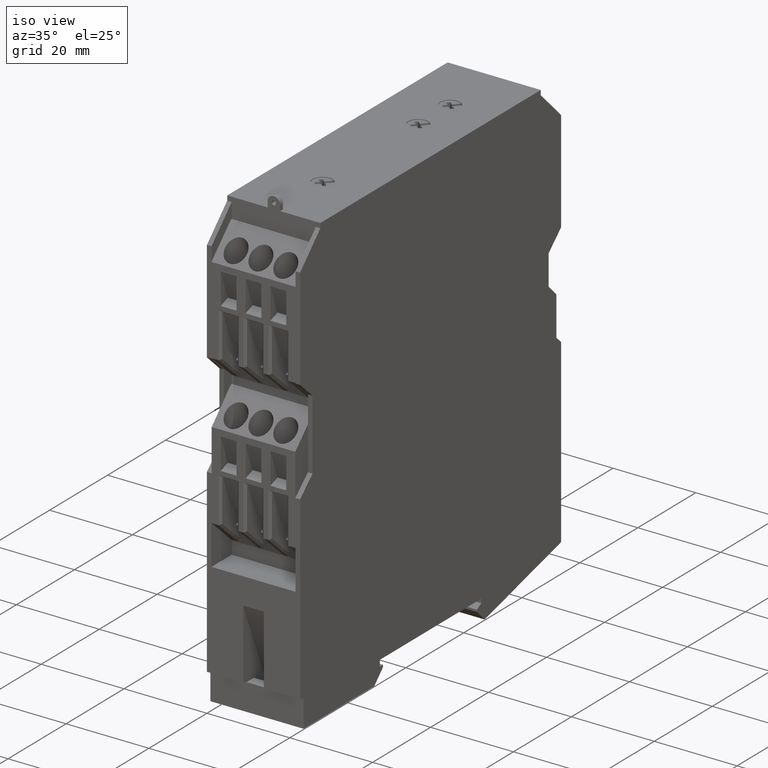
[diagram: clean part render]
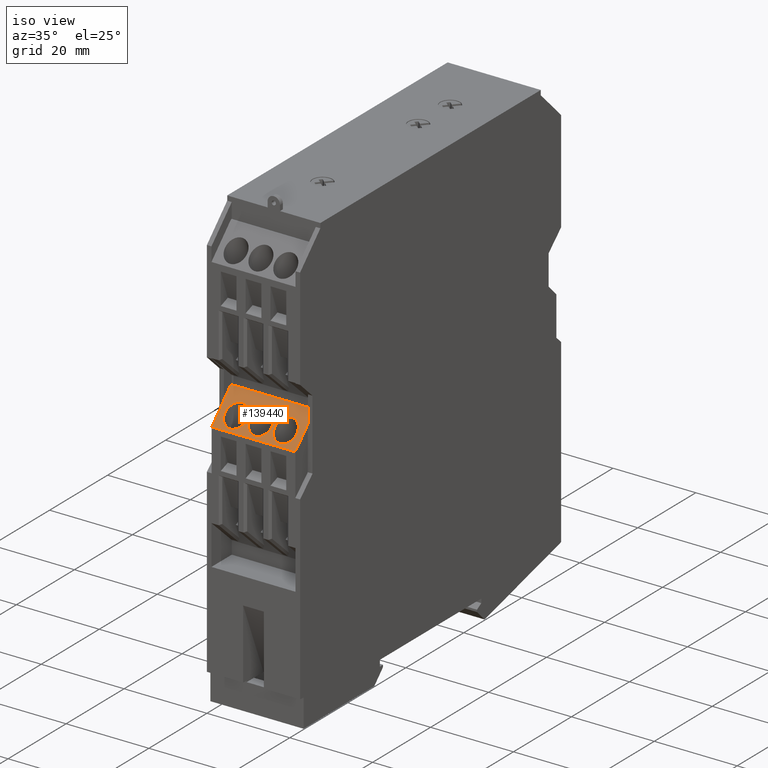
[diagram: same view with one face highlighted and labeled with its STEP entity id]
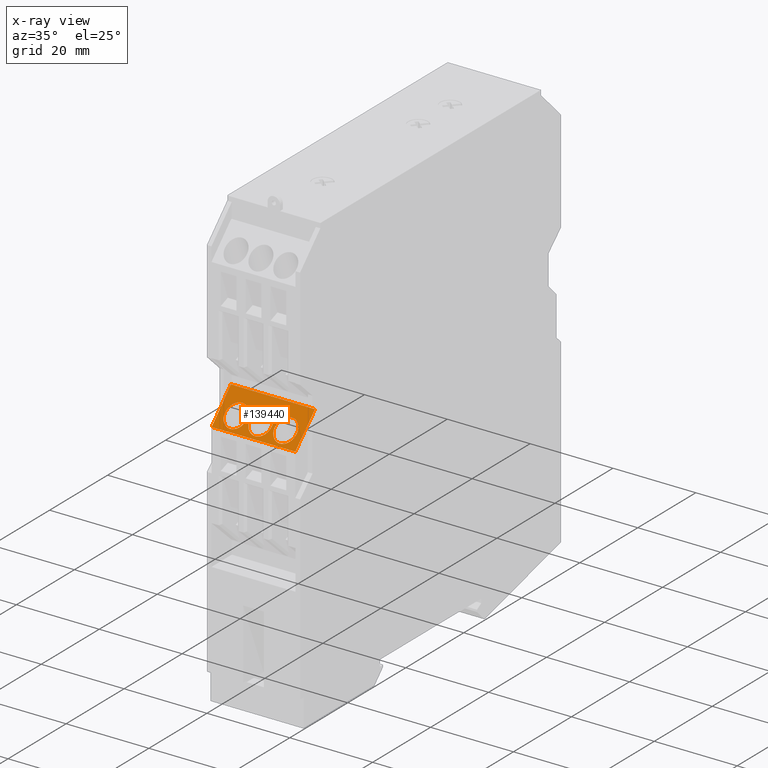
[diagram: x-ray of the same camera — body ghosted, the highlighted face saturated]
A machine part, iso view. The second image highlights one B-rep face of the part: STEP entity #139440.
The next image is the same camera in x-ray: the body ghosted, the highlighted face saturated — about 0% of this face is hidden behind the body in this view.
In plain terms, the highlighted planar face has unit normal (0, 0.7071, -0.7071).
Its self-contained STEP definition (entity closure, byte-faithful):
#90960=CARTESIAN_POINT('',(-10.0393993066638,-48.1512360534819,
116.09754726439));
#90970=VERTEX_POINT('',#90960);
#91000=CARTESIAN_POINT('',(0.121201386672368,-48.1512360534854,
116.097547264387));
#91010=DIRECTION('',(1.,-1.7830043539703E-18,3.46944695195361E-18));
#91020=VECTOR('',#91010,1.);
#91030=LINE('',#91000,#91020);
#91040=CARTESIAN_POINT('',(10.1606006933362,-48.1512360534819,
116.09754726439));
#91050=VERTEX_POINT('',#91040);
#91060=EDGE_CURVE('',#90970,#91050,#91030,.T.);
#120460=CARTESIAN_POINT('',(-10.0393993066638,-43.85123605348,
120.397547264392));
#120470=VERTEX_POINT('',#120460);
#120520=CARTESIAN_POINT('',(-10.0393993066638,-164.248783317864,0.));
#120530=DIRECTION('',(0.,0.707106781186524,0.707106781186571));
#120540=VECTOR('',#120530,1.);
#120550=LINE('',#120520,#120540);
#120560=EDGE_CURVE('',#90970,#120470,#120550,.T.);
#120920=CARTESIAN_POINT('',(-10.0893993066638,-43.85123605348,
120.397547264393));
#120930=VERTEX_POINT('',#120920);
#120960=CARTESIAN_POINT('',(0.,-43.85123605348,120.397547264392));
#120970=DIRECTION('',(1.,0.,0.));
#120980=VECTOR('',#120970,1.);
#120990=LINE('',#120960,#120980);
#121000=EDGE_CURVE('',#120930,#120470,#120990,.T.);
#138390=CARTESIAN_POINT('',(-10.0393993066638,-41.4245533092639,
122.824230008609));
#138400=DIRECTION('',(3.7140439362709E-18,0.707106781186571,
-0.707106781186524));
#138410=DIRECTION('',(-1.19249499711598E-18,0.707106781186524,
0.707106781186571));
#138420=AXIS2_PLACEMENT_3D('',#138390,#138400,#138410);
#138430=PLANE('',#138420);
#138440=CARTESIAN_POINT('',(0.0606006933361876,-45.584119647078,
118.664663670794));
#138450=DIRECTION('',(3.7140439362709E-18,0.707106781186571,
-0.707106781186524));
#138460=DIRECTION('',(-5.77104940386005E-17,0.707106781186524,
0.707106781186571));
#138470=AXIS2_PLACEMENT_3D('',#138440,#138450,#138460);
#138480=ELLIPSE('',#138470,2.9239514852506,2.65);
#138490=CARTESIAN_POINT('',(2.71060069333619,-45.584119647078,
118.664663670794));
#138500=VERTEX_POINT('',#138490);
#138510=CARTESIAN_POINT('',(-2.58939930666381,-45.584119647078,
118.664663670794));
#138520=VERTEX_POINT('',#138510);
#138530=EDGE_CURVE('',#138500,#138520,#138480,.T.);
#138540=ORIENTED_EDGE('',*,*,#138530,.T.);
#138550=CARTESIAN_POINT('',(2.19580676109406,-44.3595702107627,
119.88921310711));
#138560=VERTEX_POINT('',#138550);
#138570=EDGE_CURVE('',#138560,#138500,#138480,.T.);
#138580=ORIENTED_EDGE('',*,*,#138570,.T.);
#138590=EDGE_CURVE('',#138520,#138560,#138480,.T.);
#138600=ORIENTED_EDGE('',*,*,#138590,.T.);
#138610=EDGE_LOOP('',(#138600,#138580,#138540));
#138620=FACE_BOUND('',#138610,.T.);
#138630=CARTESIAN_POINT('',(-5.93939930666381,-45.584119647078,
118.664663670794));
#138640=DIRECTION('',(3.7140439362709E-18,0.707106781186571,
-0.707106781186524));
#138650=DIRECTION('',(-5.77104940386004E-17,0.707106781186524,
0.707106781186571));
#138660=AXIS2_PLACEMENT_3D('',#138630,#138640,#138650);
#138670=ELLIPSE('',#138660,2.9239514852506,2.65);
#138680=CARTESIAN_POINT('',(-3.28939930666381,-45.584119647078,
118.664663670794));
#138690=VERTEX_POINT('',#138680);
#138700=CARTESIAN_POINT('',(-8.58939930666381,-45.584119647078,
118.664663670794));
#138710=VERTEX_POINT('',#138700);
#138720=EDGE_CURVE('',#138690,#138710,#138670,.T.);
#138730=ORIENTED_EDGE('',*,*,#138720,.T.);
#138740=CARTESIAN_POINT('',(-3.36439930666382,-45.0957113087938,
119.153072009079));
#138750=VERTEX_POINT('',#138740);
#138760=EDGE_CURVE('',#138750,#138690,#138670,.T.);
#138770=ORIENTED_EDGE('',*,*,#138760,.T.);
#138780=EDGE_CURVE('',#138710,#138750,#138670,.T.);
#138790=ORIENTED_EDGE('',*,*,#138780,.T.);
#138800=EDGE_LOOP('',(#138790,#138770,#138730));
#138810=FACE_BOUND('',#138800,.T.);
#138820=CARTESIAN_POINT('',(6.06060069333619,-45.584119647078,
118.664663670794));
#138830=DIRECTION('',(3.7140439362709E-18,0.707106781186571,
-0.707106781186524));
#138840=DIRECTION('',(-5.77104940386005E-17,0.707106781186524,
0.707106781186571));
#138850=AXIS2_PLACEMENT_3D('',#138820,#138830,#138840);
#138860=ELLIPSE('',#138850,2.9239514852506,2.65);
#138870=CARTESIAN_POINT('',(3.41060069333619,-45.584119647078,
118.664663670794));
#138880=VERTEX_POINT('',#138870);
#138890=CARTESIAN_POINT('',(8.71060069333619,-45.584119647078,
118.664663670794));
#138900=VERTEX_POINT('',#138890);
#138910=EDGE_CURVE('',#138880,#138900,#138860,.T.);
#138920=ORIENTED_EDGE('',*,*,#138910,.T.);
#138930=CARTESIAN_POINT('',(3.48560069333619,-46.0725279853623,
118.17625533251));
#138940=VERTEX_POINT('',#138930);
#138950=EDGE_CURVE('',#138940,#138880,#138860,.T.);
#138960=ORIENTED_EDGE('',*,*,#138950,.T.);
#138970=EDGE_CURVE('',#138900,#138940,#138860,.T.);
#138980=ORIENTED_EDGE('',*,*,#138970,.T.);
#138990=EDGE_LOOP('',(#138980,#138960,#138920));
#139000=FACE_BOUND('',#138990,.T.);
#139010=ORIENTED_EDGE('',*,*,#120560,.F.);
#139020=ORIENTED_EDGE('',*,*,#121000,.T.);
#139030=CARTESIAN_POINT('',(-10.0893993066638,-164.248783317864,0.));
#139040=DIRECTION('',(0.,0.707106781186524,0.707106781186571));
#139050=VECTOR('',#139040,1.);
#139060=LINE('',#139030,#139050);
#139070=CARTESIAN_POINT('',(-10.0893993066638,-41.4245533092639,
122.824230008609));
#139080=VERTEX_POINT('',#139070);
#139090=EDGE_CURVE('',#120930,#139080,#139060,.T.);
#139100=ORIENTED_EDGE('',*,*,#139090,.F.);
#139110=CARTESIAN_POINT('',(0.,-41.4245533092639,122.824230008609));
#139120=DIRECTION('',(-1.,1.7830043539703E-18,-3.46944695195361E-18));
#139130=VECTOR('',#139120,1.);
#139140=LINE('',#139110,#139130);
#139150=CARTESIAN_POINT('',(10.2106006933362,-41.4245533092639,
122.824230008609));
#139160=VERTEX_POINT('',#139150);
#139170=EDGE_CURVE('',#139160,#139080,#139140,.T.);
#139180=ORIENTED_EDGE('',*,*,#139170,.T.);
#139190=CARTESIAN_POINT('',(10.2106006933362,-164.248783317864,0.));
#139200=DIRECTION('',(0.,0.707106781186524,0.707106781186571));
#139210=VECTOR('',#139200,1.);
#139220=LINE('',#139190,#139210);
#139230=CARTESIAN_POINT('',(10.2106006933362,-43.85123605348,
120.397547264393));
#139240=VERTEX_POINT('',#139230);
#139250=EDGE_CURVE('',#139240,#139160,#139220,.T.);
#139260=ORIENTED_EDGE('',*,*,#139250,.T.);
#139270=CARTESIAN_POINT('',(0.,-43.85123605348,120.397547264392));
#139280=DIRECTION('',(1.,0.,5.25245130592404E-18));
#139290=VECTOR('',#139280,1.);
#139300=LINE('',#139270,#139290);
#139310=CARTESIAN_POINT('',(10.1606006933362,-43.85123605348,
120.397547264392));
#139320=VERTEX_POINT('',#139310);
#139330=EDGE_CURVE('',#139320,#139240,#139300,.T.);
#139340=ORIENTED_EDGE('',*,*,#139330,.T.);
#139350=CARTESIAN_POINT('',(10.1606006933362,-164.248783317864,0.));
#139360=DIRECTION('',(0.,0.707106781186524,0.707106781186571));
#139370=VECTOR('',#139360,1.);
#139380=LINE('',#139350,#139370);
#139390=EDGE_CURVE('',#91050,#139320,#139380,.T.);
#139400=ORIENTED_EDGE('',*,*,#139390,.T.);
#139410=ORIENTED_EDGE('',*,*,#91060,.T.);
#139420=EDGE_LOOP('',(#139410,#139400,#139340,#139260,#139180,#139100,
#139020,#139010));
#139430=FACE_OUTER_BOUND('',#139420,.T.);
#139440=ADVANCED_FACE('',(#138620,#138810,#139000,#139430),#138430,.F.);